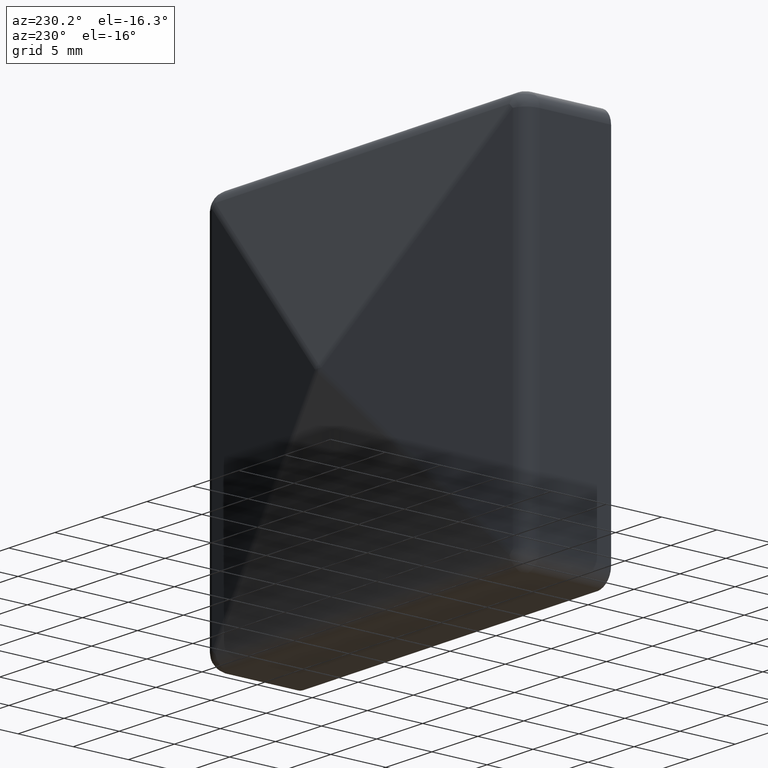
[diagram: clean part render]
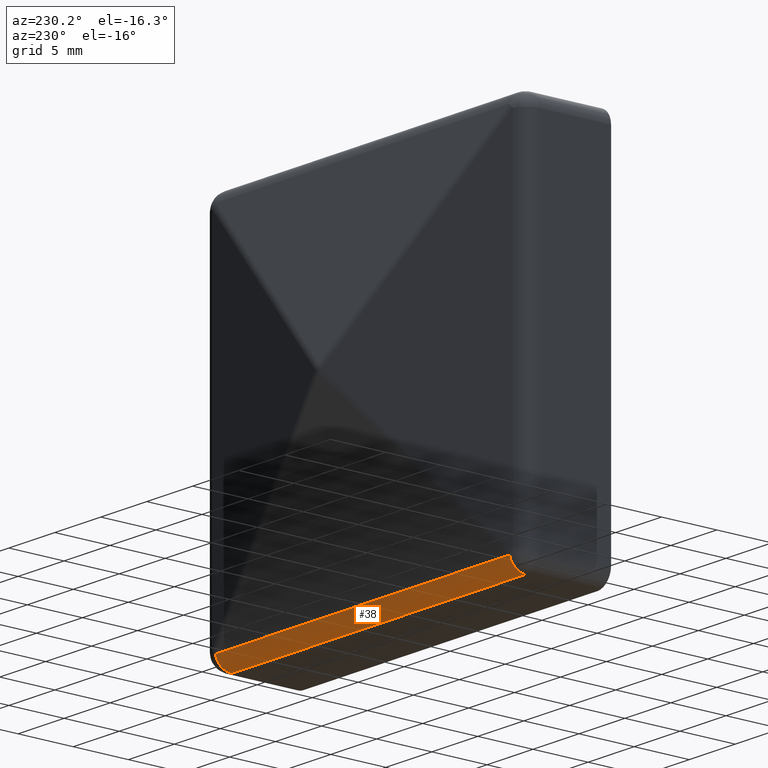
[diagram: same view with one face highlighted and labeled with its STEP entity id]
A machine part, auxiliary view. The second image highlights one B-rep face of the part: STEP entity #38.
In plain terms, the highlighted cylindrical surface (edge-blend (fillet) strip) has radius 1.5 mm, axis along (-1, -0, 0).
Its self-contained STEP definition (entity closure, byte-faithful):
#38 = ADVANCED_FACE ( 'NONE', ( #2062 ), #15683, .T. ) ;
#1329 = CIRCLE ( 'NONE', #5615, 1.500000000000001300 ) ;
#1825 = CIRCLE ( 'NONE', #8990, 1.500000000000001300 ) ;
#2062 = FACE_OUTER_BOUND ( 'NONE', #11397, .T. ) ;
#2194 = CARTESIAN_POINT ( 'NONE',  ( 15.99999999999995900, 6.500000000000000900, -15.99999999999996300 ) ) ;
#2247 = CARTESIAN_POINT ( 'NONE',  ( 17.49999999999996100, 6.500000000000000000, -17.49999999999996400 ) ) ;
#3244 = EDGE_CURVE ( 'NONE', #10932, #8326, #8030, .T. ) ;
#3325 = CARTESIAN_POINT ( 'NONE',  ( -16.00000000000000000, 6.500000000000000000, -17.49999999999995700 ) ) ;
#3490 = DIRECTION ( 'NONE',  ( -1.000000000000000000, -0.0000000000000000000, 2.220446049250313100E-016 ) ) ;
#3931 = VECTOR ( 'NONE', #8500, 1000.000000000000000 ) ;
#3999 = ORIENTED_EDGE ( 'NONE', *, *, #6565, .T. ) ;
#4511 = CARTESIAN_POINT ( 'NONE',  ( -15.99999999999995900, 6.500000000000000900, -15.99999999999995600 ) ) ;
#5091 = CARTESIAN_POINT ( 'NONE',  ( 17.49999999999996100, 6.500000000000000900, -15.99999999999996300 ) ) ;
#5149 = DIRECTION ( 'NONE',  ( 0.0000000000000000000, 0.0000000000000000000, 1.000000000000000000 ) ) ;
#5615 = AXIS2_PLACEMENT_3D ( 'NONE', #4511, #8383, #13471 ) ;
#5717 = ORIENTED_EDGE ( 'NONE', *, *, #3244, .T. ) ;
#5784 = CARTESIAN_POINT ( 'NONE',  ( 17.49999999999996100, 7.955213750217997600, -16.36380343755446600 ) ) ;
#6015 = EDGE_CURVE ( 'NONE', #8326, #15341, #1329, .T. ) ;
#6433 = DIRECTION ( 'NONE',  ( -1.000000000000000000, -0.0000000000000000000, 2.220446049250313100E-016 ) ) ;
#6565 = EDGE_CURVE ( 'NONE', #11918, #10932, #1825, .T. ) ;
#7211 = VECTOR ( 'NONE', #16215, 1000.000000000000000 ) ;
#7385 = EDGE_CURVE ( 'NONE', #11918, #15341, #13773, .T. ) ;
#7459 = CARTESIAN_POINT ( 'NONE',  ( -15.99999999999995900, 7.955213750217997600, -16.36380343755445900 ) ) ;
#8030 = LINE ( 'NONE', #2247, #7211 ) ;
#8326 = VERTEX_POINT ( 'NONE', #3325 ) ;
#8383 = DIRECTION ( 'NONE',  ( 1.000000000000000000, 0.0000000000000000000, -2.220446049250313100E-016 ) ) ;
#8500 = DIRECTION ( 'NONE',  ( -1.000000000000000000, -0.0000000000000000000, 2.220446049250313100E-016 ) ) ;
#8990 = AXIS2_PLACEMENT_3D ( 'NONE', #2194, #3490, #10918 ) ;
#10918 = DIRECTION ( 'NONE',  ( 0.0000000000000000000, 0.0000000000000000000, 1.000000000000000000 ) ) ;
#10932 = VERTEX_POINT ( 'NONE', #13254 ) ;
#11397 = EDGE_LOOP ( 'NONE', ( #5717, #11623, #13275, #3999 ) ) ;
#11623 = ORIENTED_EDGE ( 'NONE', *, *, #6015, .T. ) ;
#11918 = VERTEX_POINT ( 'NONE', #13867 ) ;
#13254 = CARTESIAN_POINT ( 'NONE',  ( 15.99999999999995900, 6.500000000000000000, -17.49999999999996400 ) ) ;
#13275 = ORIENTED_EDGE ( 'NONE', *, *, #7385, .F. ) ;
#13471 = DIRECTION ( 'NONE',  ( 0.0000000000000000000, 0.0000000000000000000, 1.000000000000000000 ) ) ;
#13761 = AXIS2_PLACEMENT_3D ( 'NONE', #5091, #6433, #5149 ) ;
#13773 = LINE ( 'NONE', #5784, #3931 ) ;
#13867 = CARTESIAN_POINT ( 'NONE',  ( 15.99999999999995900, 7.955213750217997600, -16.36380343755446600 ) ) ;
#15341 = VERTEX_POINT ( 'NONE', #7459 ) ;
#15683 = CYLINDRICAL_SURFACE ( 'NONE', #13761, 1.500000000000001300 ) ;
#16215 = DIRECTION ( 'NONE',  ( -1.000000000000000000, -0.0000000000000000000, 2.220446049250313100E-016 ) ) ;